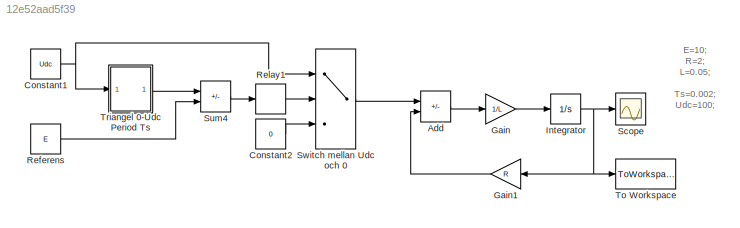
MODEL slx_12e52aad5f39
KIND model
CONFIG AbsTol = auto
CONFIG EnableMultiTasking = on
CONFIG FixedStep = auto
CONFIG MaxStep = auto
CONFIG MinStep = auto
CONFIG RelTol = 1e-3
CONFIG SampleTimeConstraint = Unconstrained
CONFIG Solver = ode45
CONFIG SolverName = ode45
CONFIG StartTime = 0.0
CONFIG StopTime = 0.2
BLOCK [Sum] Add
  IconShape = rectangular
  Inputs = +-
  Ports = [2, 1]
BLOCK [Constant] Constant1
  Value = Udc
BLOCK [Constant] Constant2
  Value = 0
BLOCK [Gain] Gain
  Gain = 1/L
BLOCK [Gain] Gain1
  Gain = R
  NameLocation = top
BLOCK [Integrator] Integrator
  Ports = [1, 1]
BLOCK [Constant] Referens
  Value = E
BLOCK [Relay] Relay1
  NameLocation = top
  OffOutputValue = -1
BLOCK [Scope] Scope
  Floating = off
  NumInputPorts = 1
  Ports = [1]
  ScopeSpecificationString = Simulink.scopes.TimeScopeBlockCfg('CurrentConfiguration', extmgr.ConfigurationSet(extmgr.Configuration('Core','General UI',true),extmgr.Configuration('Core','Source UI',true),extmgr.Configuration('Sources','WiredSimulink',true,'DataLoggingSaveFormat','StructureWithTime','DataLoggingLimitDataPoints',true,'DataLoggingDecimation','1','DataLoggingDecimateData',true),extmgr.Configuration('Visuals','Tim...<+1667ch>
BLOCK [Sum] Sum4
  IconShape = rectangular
  InputSameDT = on
  Inputs = -+
  NameLocation = top
  OutDataTypeStr = Inherit: Same as first input
  Ports = [2, 1]
  SaturateOnIntegerOverflow = on
BLOCK [Switch] Switch mellan Udc och 0
BLOCK [ToWorkspace] To Workspace
  MaxDataPoints = inf
  Ports = [1]
  SampleTime = -1
  VariableName = irlpwm
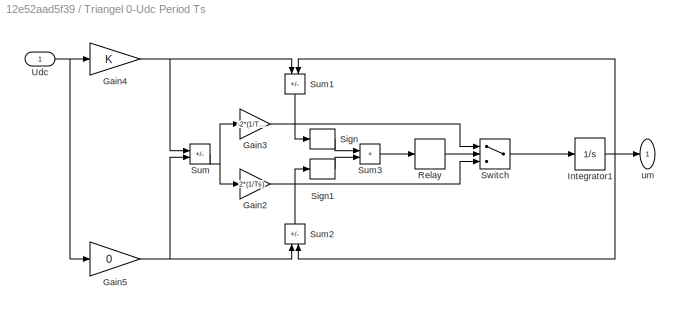
BLOCK [SubSystem] Triangel 0-Udc Period Ts
  Ports = [1, 1]
  RequestExecContextInheritance = off
BLOCK [Gain] Triangel 0-Udc Period Ts/Gain2
  Gain = 2*(1/Ts)
  OutDataTypeStr = Inherit: Same as input
  ParamDataTypeStr = Inherit: Same as input
  SaturateOnIntegerOverflow = on
BLOCK [Gain] Triangel 0-Udc Period Ts/Gain3
  Gain = -2*(1/Ts)
  OutDataTypeStr = Inherit: Same as input
  ParamDataTypeStr = Inherit: Same as input
  SaturateOnIntegerOverflow = on
BLOCK [Gain] Triangel 0-Udc Period Ts/Gain4
  OutDataTypeStr = Inherit: Same as input
  ParamDataTypeStr = Inherit: Same as input
  SaturateOnIntegerOverflow = on
BLOCK [Gain] Triangel 0-Udc Period Ts/Gain5
  Gain = 0
  OutDataTypeStr = Inherit: Same as input
  ParamDataTypeStr = Inherit: Same as input
  SaturateOnIntegerOverflow = on
BLOCK [Integrator] Triangel 0-Udc Period Ts/Integrator1
  Ports = [1, 1]
BLOCK [Relay] Triangel 0-Udc Period Ts/Relay
  OffOutputValue = -1
  OffSwitchValue = -1
  OnSwitchValue = 1
BLOCK [Signum] Triangel 0-Udc Period Ts/Sign
BLOCK [Signum] Triangel 0-Udc Period Ts/Sign1
BLOCK [Sum] Triangel 0-Udc Period Ts/Sum
  IconShape = rectangular
  InputSameDT = on
  Inputs = +-
  OutDataTypeStr = Inherit: Same as first input
  Ports = [2, 1]
  SaturateOnIntegerOverflow = on
BLOCK [Sum] Triangel 0-Udc Period Ts/Sum1
  IconShape = rectangular
  InputSameDT = on
  Inputs = -+
  NameLocation = left
  OutDataTypeStr = Inherit: Same as first input
  Ports = [2, 1]
  SaturateOnIntegerOverflow = on
BLOCK [Sum] Triangel 0-Udc Period Ts/Sum2
  IconShape = rectangular
  InputSameDT = on
  Inputs = -+
  NameLocation = right
  OutDataTypeStr = Inherit: Same as first input
  Ports = [2, 1]
  SaturateOnIntegerOverflow = on
BLOCK [Sum] Triangel 0-Udc Period Ts/Sum3
  IconShape = rectangular
  InputSameDT = on
  OutDataTypeStr = Inherit: Same as first input
  Ports = [2, 1]
  SaturateOnIntegerOverflow = on
BLOCK [Switch] Triangel 0-Udc Period Ts/Switch
BLOCK [Inport] Triangel 0-Udc Period Ts/Udc
BLOCK [Outport] Triangel 0-Udc Period Ts/um
  VectorParamsAs1DForOutWhenUnconnected = off
ANNOTATION (root): E=10; R=2; L=0.05; Ts=0.002; Udc=100;
LINE Add:1 -> Gain:1
NET Constant1:1 -> Switch mellan Udc och 0:1, Triangel 0-Udc Period Ts:1
LINE Constant2:1 -> Switch mellan Udc och 0:3
LINE Gain1:1 -> Add:2
LINE Gain:1 -> Integrator:1
NET Integrator:1 -> Gain1:1, Scope:1, To Workspace:1
LINE Referens:1 -> Sum4:2
LINE Relay1:1 -> Switch mellan Udc och 0:2
LINE Sum4:1 -> Relay1:1
LINE Switch mellan Udc och 0:1 -> Add:1
LINE Triangel 0-Udc Period Ts/Gain2:1 -> Triangel 0-Udc Period Ts/Switch:3
LINE Triangel 0-Udc Period Ts/Gain3:1 -> Triangel 0-Udc Period Ts/Switch:1
NET Triangel 0-Udc Period Ts/Gain4:1 -> Triangel 0-Udc Period Ts/Sum1:1, Triangel 0-Udc Period Ts/Sum:1
NET Triangel 0-Udc Period Ts/Gain5:1 -> Triangel 0-Udc Period Ts/Sum2:1, Triangel 0-Udc Period Ts/Sum:2
NET Triangel 0-Udc Period Ts/Integrator1:1 -> Triangel 0-Udc Period Ts/Sum1:2, Triangel 0-Udc Period Ts/Sum2:2, Triangel 0-Udc Period Ts/um:1
LINE Triangel 0-Udc Period Ts/Relay:1 -> Triangel 0-Udc Period Ts/Switch:2
LINE Triangel 0-Udc Period Ts/Sign1:1 -> Triangel 0-Udc Period Ts/Sum3:2
LINE Triangel 0-Udc Period Ts/Sign:1 -> Triangel 0-Udc Period Ts/Sum3:1
LINE Triangel 0-Udc Period Ts/Sum1:1 -> Triangel 0-Udc Period Ts/Sign:1
LINE Triangel 0-Udc Period Ts/Sum2:1 -> Triangel 0-Udc Period Ts/Sign1:1
LINE Triangel 0-Udc Period Ts/Sum3:1 -> Triangel 0-Udc Period Ts/Relay:1
NET Triangel 0-Udc Period Ts/Sum:1 -> Triangel 0-Udc Period Ts/Gain2:1, Triangel 0-Udc Period Ts/Gain3:1
LINE Triangel 0-Udc Period Ts/Switch:1 -> Triangel 0-Udc Period Ts/Integrator1:1
NET Triangel 0-Udc Period Ts/Udc:1 -> Triangel 0-Udc Period Ts/Gain4:1, Triangel 0-Udc Period Ts/Gain5:1
LINE Triangel 0-Udc Period Ts:1 -> Sum4:1
note: NET lines group one-source signal fan-out (src -> all destinations, sorted); 1:1 wires keep LINE
